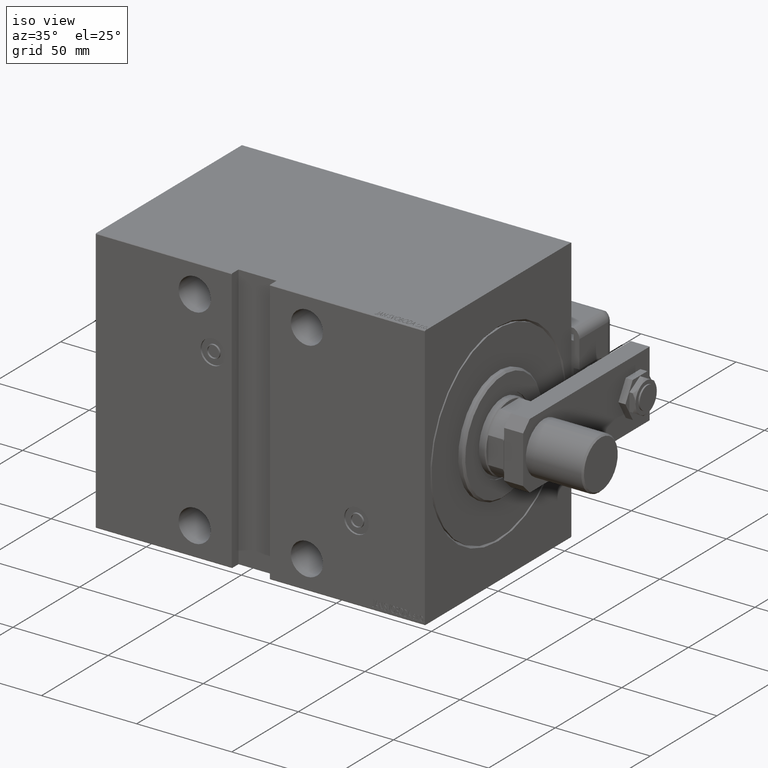
[diagram: clean part render]
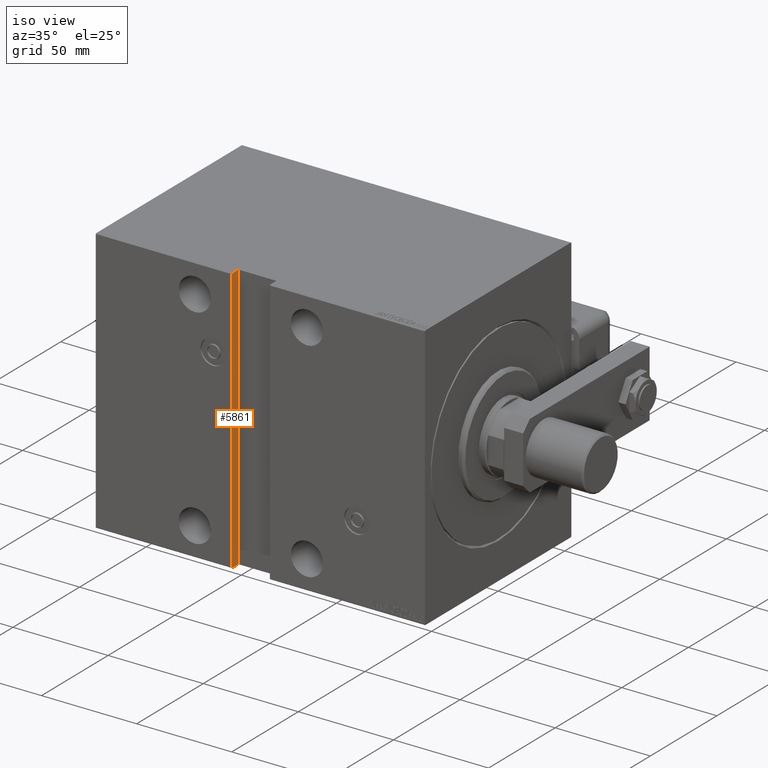
[diagram: same view with one face highlighted and labeled with its STEP entity id]
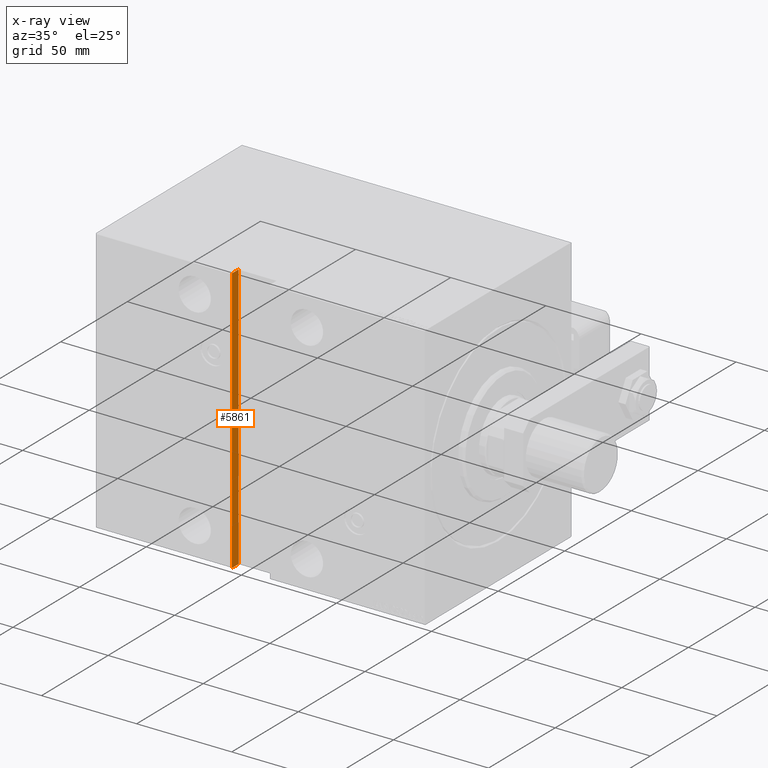
[diagram: x-ray of the same camera — body ghosted, the highlighted face saturated]
A machine part, iso view. The second image highlights one B-rep face of the part: STEP entity #5861.
The next image is the same camera in x-ray: the body ghosted, the highlighted face saturated — about 0% of this face is hidden behind the body in this view.
In plain terms, the highlighted planar face has unit normal (-1, -0, -0).
Its self-contained STEP definition (entity closure, byte-faithful):
#415 = EDGE_CURVE ( 'NONE', #48762, #36529, #41480, .T. ) ;
#498 = CARTESIAN_POINT ( 'NONE',  ( 101.4999999999999858, 55.00000000000002842, -69.69999999999997442 ) ) ;
#534 = LINE ( 'NONE', #45463, #16967 ) ;
#1051 = VERTEX_POINT ( 'NONE', #31784 ) ;
#1853 = AXIS2_PLACEMENT_3D ( 'NONE', #51766, #37825, #4768 ) ;
#4768 = DIRECTION ( 'NONE',  ( -1.982541115402065110E-16, 0.000000000000000000, -1.000000000000000000 ) ) ;
#5399 = EDGE_CURVE ( 'NONE', #1051, #48762, #33407, .T. ) ;
#5695 = CARTESIAN_POINT ( 'NONE',  ( 101.4999999999999858, 54.69999999999999574, -70.00000000000000000 ) ) ;
#5861 = ADVANCED_FACE ( 'NONE', ( #10508 ), #14167, .F. ) ;
#8502 = DIRECTION ( 'NONE',  ( -1.401868266681941928E-16, 0.7071067811865474617, -0.7071067811865474617 ) ) ;
#8894 = EDGE_LOOP ( 'NONE', ( #16465, #36186, #45701, #23101, #50680, #58069 ) ) ;
#9715 = CARTESIAN_POINT ( 'NONE',  ( 101.4999999999999858, 55.00000000000000711, -69.69999999999998863 ) ) ;
#9763 = DIRECTION ( 'NONE',  ( -1.982541115402065110E-16, 0.000000000000000000, -1.000000000000000000 ) ) ;
#10508 = FACE_OUTER_BOUND ( 'NONE', #8894, .T. ) ;
#14167 = PLANE ( 'NONE',  #1853 ) ;
#14403 = CARTESIAN_POINT ( 'NONE',  ( 101.5000000000000000, 54.69999999999997442, 70.00000000000000000 ) ) ;
#16465 = ORIENTED_EDGE ( 'NONE', *, *, #5399, .T. ) ;
#16967 = VECTOR ( 'NONE', #32698, 1000.000000000000000 ) ;
#17967 = VECTOR ( 'NONE', #53499, 1000.000000000000000 ) ;
#19296 = DIRECTION ( 'NONE',  ( -1.401868266681941928E-16, -0.7071067811865474617, -0.7071067811865474617 ) ) ;
#19527 = CARTESIAN_POINT ( 'NONE',  ( 101.5000000000000000, 50.00000000000001421, -70.00000000000000000 ) ) ;
#20989 = EDGE_CURVE ( 'NONE', #44945, #1051, #31849, .T. ) ;
#21036 = CARTESIAN_POINT ( 'NONE',  ( 101.4999999999999858, 50.00000000000000711, -70.00000000000000000 ) ) ;
#22934 = DIRECTION ( 'NONE',  ( -1.982541115402065110E-16, 0.000000000000000000, -1.000000000000000000 ) ) ;
#23101 = ORIENTED_EDGE ( 'NONE', *, *, #32968, .F. ) ;
#23524 = LINE ( 'NONE', #24107, #24905 ) ;
#23717 = CARTESIAN_POINT ( 'NONE',  ( 101.5000000000000000, 55.00000000000000711, 70.00000000000000000 ) ) ;
#24107 = CARTESIAN_POINT ( 'NONE',  ( 101.5000000000000000, 50.00000000000000711, 70.00000000000000000 ) ) ;
#24905 = VECTOR ( 'NONE', #22934, 1000.000000000000000 ) ;
#25339 = VECTOR ( 'NONE', #19296, 1000.000000000000114 ) ;
#25444 = EDGE_CURVE ( 'NONE', #42566, #36529, #59476, .T. ) ;
#27472 = VECTOR ( 'NONE', #8502, 1000.000000000000114 ) ;
#28117 = EDGE_CURVE ( 'NONE', #34940, #44945, #534, .T. ) ;
#31557 = CARTESIAN_POINT ( 'NONE',  ( 101.5000000000000000, 54.69999999999996732, 70.00000000000001421 ) ) ;
#31784 = CARTESIAN_POINT ( 'NONE',  ( 101.5000000000000000, 55.00000000000000711, 69.69999999999998863 ) ) ;
#31849 = LINE ( 'NONE', #31557, #27472 ) ;
#32698 = DIRECTION ( 'NONE',  ( -0.000000000000000000, 1.000000000000000000, -0.000000000000000000 ) ) ;
#32968 = EDGE_CURVE ( 'NONE', #34940, #42566, #23524, .T. ) ;
#33407 = LINE ( 'NONE', #23717, #37917 ) ;
#34940 = VERTEX_POINT ( 'NONE', #46490 ) ;
#36186 = ORIENTED_EDGE ( 'NONE', *, *, #415, .T. ) ;
#36529 = VERTEX_POINT ( 'NONE', #5695 ) ;
#37825 = DIRECTION ( 'NONE',  ( 1.000000000000000000, 0.000000000000000000, -1.982541115402065110E-16 ) ) ;
#37917 = VECTOR ( 'NONE', #9763, 1000.000000000000000 ) ;
#41480 = LINE ( 'NONE', #498, #25339 ) ;
#42566 = VERTEX_POINT ( 'NONE', #19527 ) ;
#44945 = VERTEX_POINT ( 'NONE', #14403 ) ;
#45463 = CARTESIAN_POINT ( 'NONE',  ( 101.5000000000000000, 50.00000000000000711, 70.00000000000000000 ) ) ;
#45701 = ORIENTED_EDGE ( 'NONE', *, *, #25444, .F. ) ;
#46490 = CARTESIAN_POINT ( 'NONE',  ( 101.5000000000000000, 50.00000000000000711, 70.00000000000000000 ) ) ;
#48762 = VERTEX_POINT ( 'NONE', #9715 ) ;
#50680 = ORIENTED_EDGE ( 'NONE', *, *, #28117, .T. ) ;
#51766 = CARTESIAN_POINT ( 'NONE',  ( 101.5000000000000000, 50.00000000000000711, 70.00000000000000000 ) ) ;
#53499 = DIRECTION ( 'NONE',  ( -0.000000000000000000, 1.000000000000000000, -0.000000000000000000 ) ) ;
#58069 = ORIENTED_EDGE ( 'NONE', *, *, #20989, .T. ) ;
#59476 = LINE ( 'NONE', #21036, #17967 ) ;